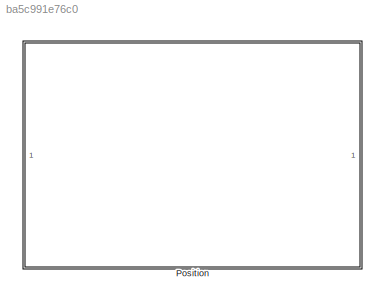
MODEL slx_ba5c991e76c0
KIND model
CONFIG AbsTol = auto
CONFIG EnableMultiTasking = off
CONFIG FixedStep = auto
CONFIG MaxStep = auto
CONFIG MinStep = auto
CONFIG RelTol = 1e-3
CONFIG SampleTimeConstraint = Unconstrained
CONFIG SolverName = VariableStepAuto
CONFIG StartTime = 0.0
CONFIG StopTime = 10.0
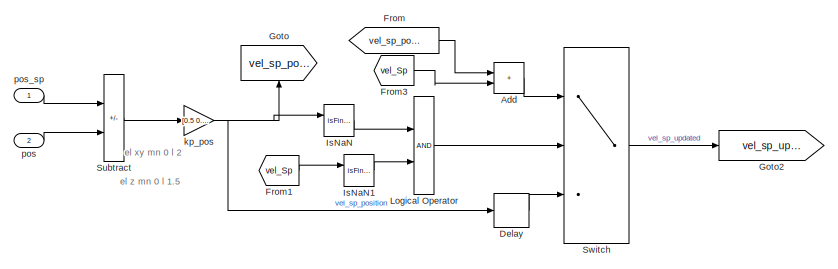
[diagram: Position - part 1/2, top left region]
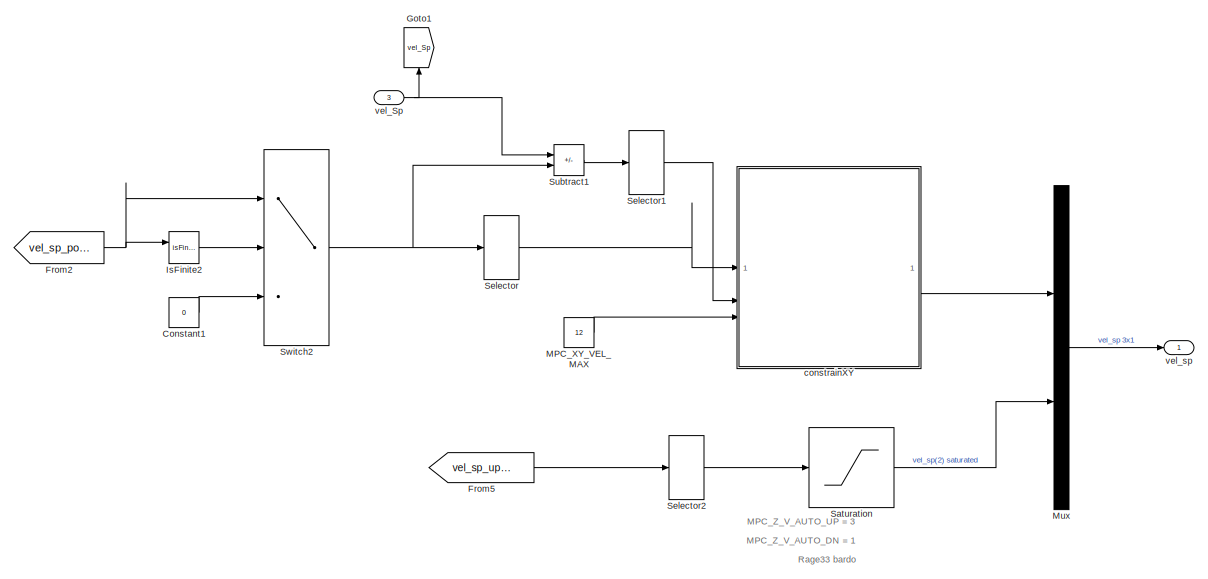
[diagram: Position - part 2/2, right side, full height]
BLOCK [SubSystem] Position
BLOCK [Sum] Position/Add
  IconShape = rectangular
BLOCK [Constant] Position/Constant1
  Value = 0
BLOCK [Delay] Position/Delay
  DelayLength = 1
  InputPortMap = u0
BLOCK [From] Position/From
  GotoTag = vel_sp_position
  TagVisibility = global
BLOCK [From] Position/From1
  GotoTag = vel_Sp
  TagVisibility = global
BLOCK [From] Position/From2
  GotoTag = vel_sp_position
  TagVisibility = global
BLOCK [From] Position/From3
  GotoTag = vel_Sp
  TagVisibility = global
BLOCK [From] Position/From5
  GotoTag = vel_sp_updated
  TagVisibility = global
BLOCK [Goto] Position/Goto
  GotoTag = vel_sp_position
  NameLocation = right
  TagVisibility = global
BLOCK [Goto] Position/Goto1
  GotoTag = vel_Sp
  NameLocation = right
  TagVisibility = global
BLOCK [Goto] Position/Goto2
  GotoTag = vel_sp_updated
  TagVisibility = global
BLOCK [RelationalOperator] Position/IsFinite2
  InputSameDT = off
  Operator = isFinite
  OutDataTypeStr = boolean
  RndMeth = Simplest
BLOCK [RelationalOperator] Position/IsNaN
  InputSameDT = off
  Operator = isFinite
  OutDataTypeStr = boolean
  RndMeth = Simplest
BLOCK [RelationalOperator] Position/IsNaN1
  InputSameDT = off
  Operator = isFinite
  OutDataTypeStr = boolean
  RndMeth = Simplest
BLOCK [Logic] Position/Logical Operator
  AllPortsSameDT = off
  OutDataTypeStr = boolean
BLOCK [Constant] Position/MPC_XY_VEL_MAX 
  Value = 12
BLOCK [Mux] Position/Mux
  DisplayOption = bar
  Inputs = 2
BLOCK [Saturate] Position/Saturation
  LowerLimit = -3
  UpperLimit = 1
BLOCK [Selector] Position/Selector
  IndexOptions = Index vector (dialog)
  Indices = [1 2]
  InputPortWidth = 3
  OutputSizes = 1
BLOCK [Selector] Position/Selector1
  IndexOptions = Index vector (dialog)
  Indices = [1 2]
  InputPortWidth = 3
  OutputSizes = 1
BLOCK [Selector] Position/Selector2
  IndexOptions = Index vector (dialog)
  Indices = [3]
  InputPortWidth = 3
  OutputSizes = 1
BLOCK [Sum] Position/Subtract
  IconShape = rectangular
  Inputs = +-
BLOCK [Sum] Position/Subtract1
  IconShape = rectangular
  Inputs = +-
BLOCK [Switch] Position/Switch
  Criteria = u2 ~= 0
  InputSameDT = off
  SaturateOnIntegerOverflow = off
BLOCK [Switch] Position/Switch2
  Criteria = u2 ~= 0
  InputSameDT = off
  SaturateOnIntegerOverflow = off
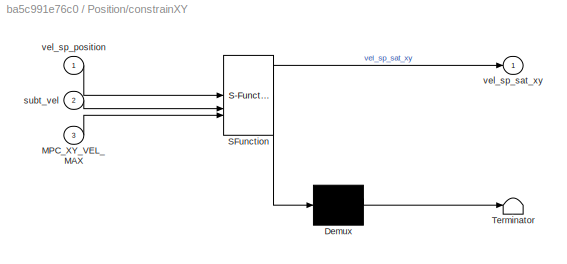
BLOCK [SubSystem] Position/constrainXY
  ErrorFcn = Stateflow.Translate.translate
  PermitHierarchicalResolution = ExplicitOnly
  SFBlockType = MATLAB Function
  TreatAsAtomicUnit = on
BLOCK [Demux] Position/constrainXY/ Demux 
  Outputs = 1
BLOCK [S-Function] Position/constrainXY/ SFunction 
  EnableBusSupport = on
  FunctionName = sf_sfun
  PortCounts = [3 2]
  SFcnIsStateOwnerBlock = off
  SFunctionDeploymentMode = off
  Tag = Stateflow S-Function 21
BLOCK [Terminator] Position/constrainXY/ Terminator 
BLOCK [Inport] Position/constrainXY/MPC_XY_VEL_MAX
  Port = 3
BLOCK [Inport] Position/constrainXY/subt_vel
  Port = 2
BLOCK [Inport] Position/constrainXY/vel_sp_position
BLOCK [Outport] Position/constrainXY/vel_sp_sat_xy
BLOCK [Gain] Position/kp_pos
  Gain = [0.5 0.8 1]
BLOCK [Inport] Position/pos
  Port = 2
BLOCK [Inport] Position/pos_sp
BLOCK [Inport] Position/vel_Sp
  Port = 3
BLOCK [Outport] Position/vel_sp
ANNOTATION Position: MPC_Z_V_AUTO_DN = 1
ANNOTATION Position: MPC_Z_V_AUTO_UP = 3
ANNOTATION Position: Rage33 bardo
ANNOTATION Position: el xy mn 0 l 2
ANNOTATION Position: el z mn 0 l 1.5
LINE Position/Add:1 -> Position/Switch:1
LINE Position/Constant1:1 -> Position/Switch2:3
LINE Position/Delay:1 -> Position/Switch:3
LINE Position/From1:1 -> Position/IsNaN1:1
NET Position/From2:1 -> Position/IsFinite2:1, Position/Switch2:1
LINE Position/From3:1 -> Position/Add:2
LINE Position/From5:1 -> Position/Selector2:1
LINE Position/From:1 -> Position/Add:1
LINE Position/IsFinite2:1 -> Position/Switch2:2
LINE Position/IsNaN1:1 -> Position/Logical Operator:2
LINE Position/IsNaN:1 -> Position/Logical Operator:1
LINE Position/Logical Operator:1 -> Position/Switch:2
LINE Position/MPC_XY_VEL_MAX :1 -> Position/constrainXY:3
LINE Position/Mux:1 -> Position/vel_sp:1
LINE Position/Saturation:1 -> Position/Mux:2
LINE Position/Selector1:1 -> Position/constrainXY:2
LINE Position/Selector2:1 -> Position/Saturation:1
LINE Position/Selector:1 -> Position/constrainXY:1
LINE Position/Subtract1:1 -> Position/Selector1:1
LINE Position/Subtract:1 -> Position/kp_pos:1
NET Position/Switch2:1 -> Position/Selector:1, Position/Subtract1:2
LINE Position/Switch:1 -> Position/Goto2:1
LINE Position/constrainXY:1 -> Position/Mux:1
NET Position/kp_pos:1 -> Position/Delay:1, Position/Goto:1, Position/IsNaN:1
LINE Position/pos:1 -> Position/Subtract:2
LINE Position/pos_sp:1 -> Position/Subtract:1
NET Position/vel_Sp:1 -> Position/Goto1:1, Position/Subtract1:1
note: NET lines group one-source signal fan-out (src -> all destinations, sorted); 1:1 wires keep LINE
CHART Position/constrainXY states=1 transitions=1
  STATE_LABEL 'eML_blk_kernel()'
  STATE_LABEL 'SCRIPT:\nfunction vel_sp_sat_xy = fcn(vel_sp_position, subt_vel, MPC_XY_VEL_MAX )\n\nif norm( vel_sp_position + subt_vel) <= MPC_XY_VEL_MAX\n    vel_sp_sat_xy = vel_sp_position+ subt_vel;\n\nelseif norm(vel_sp_position) >= MPC_XY_VEL_MAX\n    vel_sp_sat_xy = (vel_sp_position ./ norm(vel_sp_position)) .* MPC_XY_VEL_MAX;\n\nelseif abs( norm(subt_vel - vel_sp_position) ) < 0.001\n    vel_sp_sat_xy = (vel_sp_po...<+376ch>'
CHART  states=0 transitions=0
